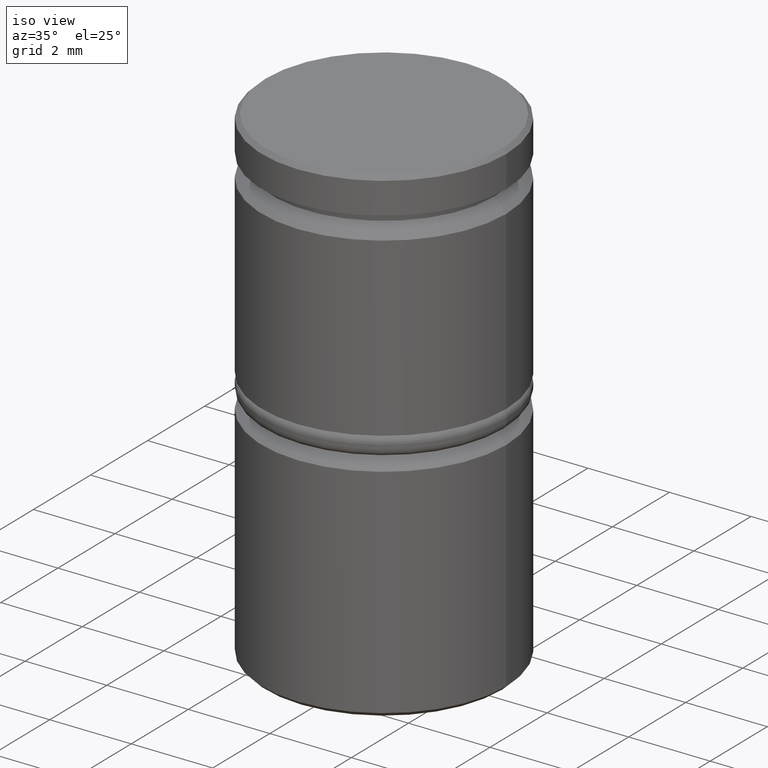
[diagram: clean part render]
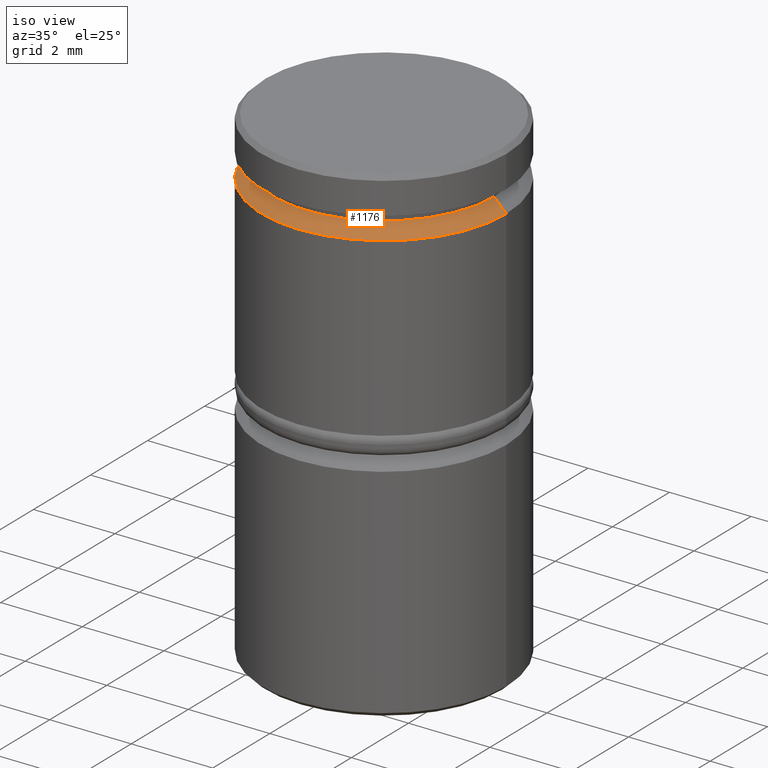
[diagram: same view with one face highlighted and labeled with its STEP entity id]
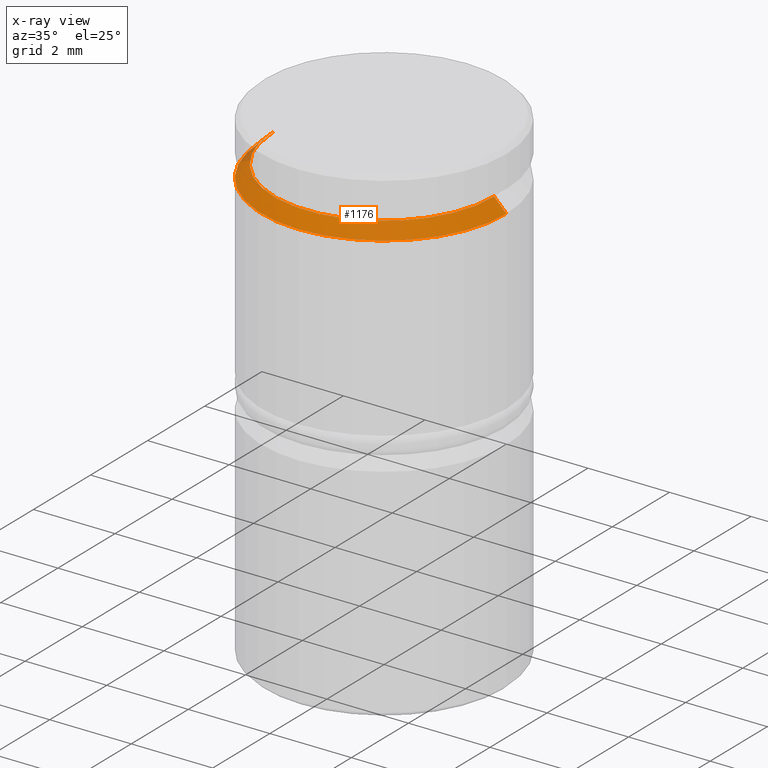
[diagram: x-ray of the same camera — body ghosted, the highlighted face saturated]
A machine part, iso view. The second image highlights one B-rep face of the part: STEP entity #1176.
The next image is the same camera in x-ray: the body ghosted, the highlighted face saturated — about 2% of this face is hidden behind the body in this view.
In plain terms, the highlighted conical surface has half-angle 45 deg.
Its self-contained STEP definition (entity closure, byte-faithful):
#14 = CARTESIAN_POINT ( 'NONE',  ( -3.000000000000000000, 3.673940397442059868E-16, -1.424999999999995381 ) ) ;
#73 = DIRECTION ( 'NONE',  ( 1.000000000000000000, 0.000000000000000000, 0.000000000000000000 ) ) ;
#82 = AXIS2_PLACEMENT_3D ( 'NONE', #566, #652, #1174 ) ;
#91 = DIRECTION ( 'NONE',  ( 1.000000000000000000, 0.000000000000000000, 0.000000000000000000 ) ) ;
#122 = CIRCLE ( 'NONE', #799, 2.700000000000000178 ) ;
#161 = VECTOR ( 'NONE', #676, 1000.000000000000114 ) ;
#185 = CARTESIAN_POINT ( 'NONE',  ( 2.700000000000005063, 3.306546357697859650E-16, -1.125000000000000222 ) ) ;
#253 = DIRECTION ( 'NONE',  ( -0.000000000000000000, -0.000000000000000000, 1.000000000000000000 ) ) ;
#278 = VERTEX_POINT ( 'NONE', #1076 ) ;
#290 = ORIENTED_EDGE ( 'NONE', *, *, #682, .F. ) ;
#320 = AXIS2_PLACEMENT_3D ( 'NONE', #633, #918, #91 ) ;
#394 = ORIENTED_EDGE ( 'NONE', *, *, #1107, .F. ) ;
#401 = CARTESIAN_POINT ( 'NONE',  ( -2.700000000000005063, 0.000000000000000000, -1.125000000000000222 ) ) ;
#470 = CIRCLE ( 'NONE', #320, 3.000000000000000000 ) ;
#481 = DIRECTION ( 'NONE',  ( 0.7071067811865474617, 8.659560562354932858E-17, -0.7071067811865474617 ) ) ;
#505 = ORIENTED_EDGE ( 'NONE', *, *, #520, .T. ) ;
#520 = EDGE_CURVE ( 'NONE', #278, #824, #870, .T. ) ;
#566 = CARTESIAN_POINT ( 'NONE',  ( 0.000000000000000000, 0.000000000000000000, -1.125000000000000222 ) ) ;
#593 = CARTESIAN_POINT ( 'NONE',  ( 3.000000000000000000, 0.000000000000000000, -1.424999999999995381 ) ) ;
#633 = CARTESIAN_POINT ( 'NONE',  ( 0.000000000000000000, 0.000000000000000000, -1.424999999999995381 ) ) ;
#652 = DIRECTION ( 'NONE',  ( 0.000000000000000000, 0.000000000000000000, -1.000000000000000000 ) ) ;
#676 = DIRECTION ( 'NONE',  ( -0.7071067811865474617, 0.000000000000000000, -0.7071067811865474617 ) ) ;
#682 = EDGE_CURVE ( 'NONE', #278, #1101, #122, .T. ) ;
#799 = AXIS2_PLACEMENT_3D ( 'NONE', #975, #253, #73 ) ;
#824 = VERTEX_POINT ( 'NONE', #14 ) ;
#827 = CARTESIAN_POINT ( 'NONE',  ( 2.700000000000000178, 0.000000000000000000, -1.125000000000000222 ) ) ;
#870 = LINE ( 'NONE', #401, #161 ) ;
#902 = VERTEX_POINT ( 'NONE', #593 ) ;
#917 = VECTOR ( 'NONE', #481, 1000.000000000000114 ) ;
#918 = DIRECTION ( 'NONE',  ( 0.000000000000000000, 0.000000000000000000, -1.000000000000000000 ) ) ;
#922 = LINE ( 'NONE', #185, #917 ) ;
#952 = ORIENTED_EDGE ( 'NONE', *, *, #1129, .F. ) ;
#975 = CARTESIAN_POINT ( 'NONE',  ( 0.000000000000000000, 0.000000000000000000, -1.125000000000000222 ) ) ;
#991 = CONICAL_SURFACE ( 'NONE', #82, 2.700000000000005063, 0.7853981633974482790 ) ;
#997 = EDGE_LOOP ( 'NONE', ( #394, #290, #505, #952 ) ) ;
#1076 = CARTESIAN_POINT ( 'NONE',  ( -2.700000000000000178, 3.306546357697853733E-16, -1.125000000000000222 ) ) ;
#1101 = VERTEX_POINT ( 'NONE', #827 ) ;
#1105 = FACE_OUTER_BOUND ( 'NONE', #997, .T. ) ;
#1107 = EDGE_CURVE ( 'NONE', #1101, #902, #922, .T. ) ;
#1129 = EDGE_CURVE ( 'NONE', #902, #824, #470, .T. ) ;
#1174 = DIRECTION ( 'NONE',  ( -1.000000000000000000, 0.000000000000000000, 0.000000000000000000 ) ) ;
#1176 = ADVANCED_FACE ( 'NONE', ( #1105 ), #991, .T. ) ;